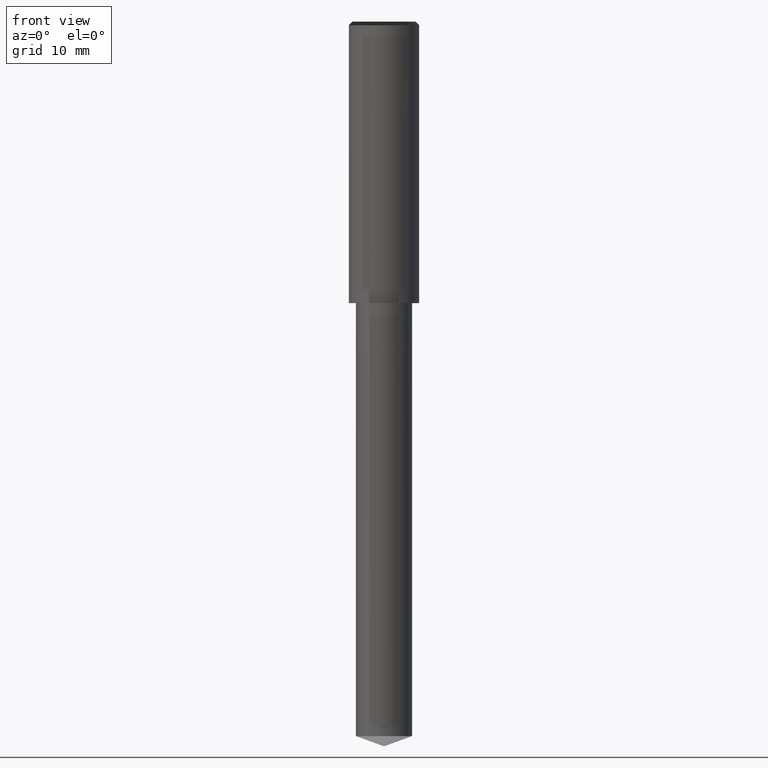
[diagram: clean part render]
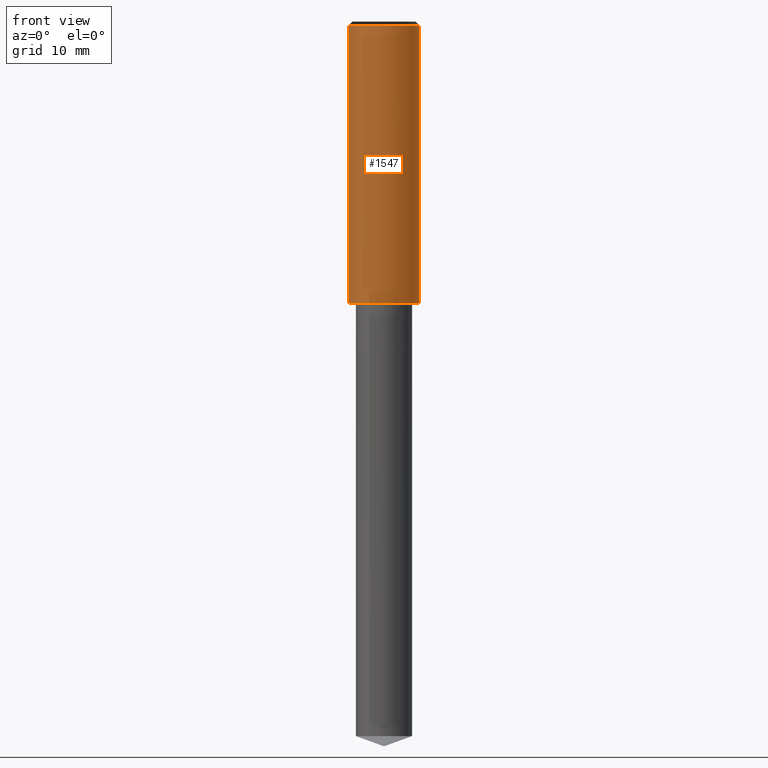
[diagram: same view with one face highlighted and labeled with its STEP entity id]
A machine part, front view. The second image highlights one B-rep face of the part: STEP entity #1547.
In plain terms, the highlighted face is a freeform B-spline surface patch.
Its self-contained STEP definition (entity closure, byte-faithful):
#1176=CARTESIAN_POINT('',(5.0,0.0,0.0));
#1180=CARTESIAN_POINT('',(-5.0,0.0,0.0));
#1181=CARTESIAN_POINT('',(5.0,0.0,39.5));
#1185=CARTESIAN_POINT('',(-5.0,0.0,39.5));
#1198=CARTESIAN_POINT('',(-5.0,-5.0,0.0));
#1199=CARTESIAN_POINT('',(0.0,-5.0,0.0));
#1200=CARTESIAN_POINT('',(5.0,-5.0,0.0));
#1201=CARTESIAN_POINT('',(-5.0,-5.0,39.5));
#1202=CARTESIAN_POINT('',(0.0,-5.0,39.5));
#1203=CARTESIAN_POINT('',(5.0,-5.0,39.5));
#1528=(
BOUNDED_SURFACE()
B_SPLINE_SURFACE(1,2,(
(#1180,#1198,#1199,#1200,#1176),
(#1185,#1201,#1202,#1203,#1181)
), .UNSPECIFIED.,.F.,.F.,.F.)
B_SPLINE_SURFACE_WITH_KNOTS((2,2),(3,2,3),(
0.0,1.0),(
0.0,0.5,1.0), .UNSPECIFIED.)
GEOMETRIC_REPRESENTATION_ITEM()
RATIONAL_B_SPLINE_SURFACE(((1.0,0.707106781187,1.0,0.707106781187,1.0),
(1.0,0.707106781187,1.0,0.707106781187,1.0)
))
REPRESENTATION_ITEM('')
SURFACE()
);
#1529=(
BOUNDED_CURVE()
B_SPLINE_CURVE(2,(#1176,#1200,#1199,#1198,#1180),.UNSPECIFIED.,.F.,.F.)
B_SPLINE_CURVE_WITH_KNOTS((3,2,3),
(0.0,0.5,1.0),.UNSPECIFIED.)
CURVE()
GEOMETRIC_REPRESENTATION_ITEM()
RATIONAL_B_SPLINE_CURVE((1.0,0.707106781187,1.0,0.707106781187,1.0))
REPRESENTATION_ITEM('')
);
#1530=(
BOUNDED_CURVE()
B_SPLINE_CURVE(1,(#1180,#1185),.UNSPECIFIED.,.F.,.F.)
B_SPLINE_CURVE_WITH_KNOTS((2,2),
(0.0,1.0),.UNSPECIFIED.)
CURVE()
GEOMETRIC_REPRESENTATION_ITEM()
RATIONAL_B_SPLINE_CURVE((1.0,1.0))
REPRESENTATION_ITEM('')
);
#1531=(
BOUNDED_CURVE()
B_SPLINE_CURVE(2,(#1185,#1201,#1202,#1203,#1181),.UNSPECIFIED.,.F.,.F.)
B_SPLINE_CURVE_WITH_KNOTS((3,2,3),
(0.0,0.5,1.0),.UNSPECIFIED.)
CURVE()
GEOMETRIC_REPRESENTATION_ITEM()
RATIONAL_B_SPLINE_CURVE((1.0,0.707106781187,1.0,0.707106781187,1.0))
REPRESENTATION_ITEM('')
);
#1532=(
BOUNDED_CURVE()
B_SPLINE_CURVE(1,(#1181,#1176),.UNSPECIFIED.,.F.,.F.)
B_SPLINE_CURVE_WITH_KNOTS((2,2),
(0.0,1.0),.UNSPECIFIED.)
CURVE()
GEOMETRIC_REPRESENTATION_ITEM()
RATIONAL_B_SPLINE_CURVE((1.0,1.0))
REPRESENTATION_ITEM('')
);
#1533=VERTEX_POINT('',#1176);
#1534=VERTEX_POINT('',#1180);
#1535=VERTEX_POINT('',#1181);
#1536=VERTEX_POINT('',#1185);
#1537=EDGE_CURVE('',#1533,#1534,#1529,.T.);
#1538=EDGE_CURVE('',#1534,#1536,#1530,.T.);
#1539=EDGE_CURVE('',#1536,#1535,#1531,.T.);
#1540=EDGE_CURVE('',#1535,#1533,#1532,.T.);
#1541=ORIENTED_EDGE('',*,*,#1537,.T.);
#1542=ORIENTED_EDGE('',*,*,#1538,.T.);
#1543=ORIENTED_EDGE('',*,*,#1539,.T.);
#1544=ORIENTED_EDGE('',*,*,#1540,.T.);
#1545=EDGE_LOOP('',(#1541,#1542,#1543,#1544));
#1546=FACE_OUTER_BOUND('',#1545,.T.);
#1547=ADVANCED_FACE('',(#1546),#1528,.T.);